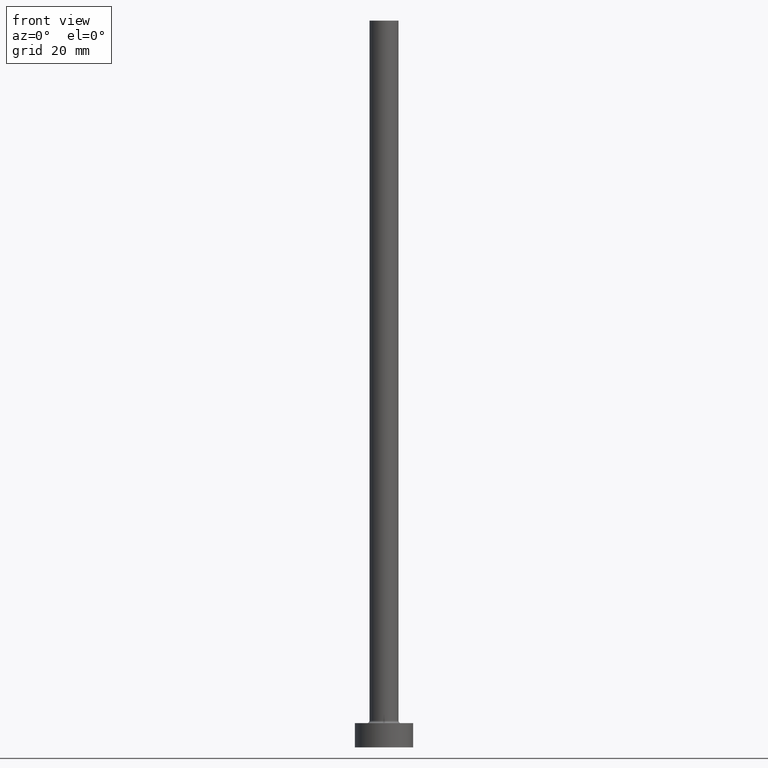
[diagram: clean part render]
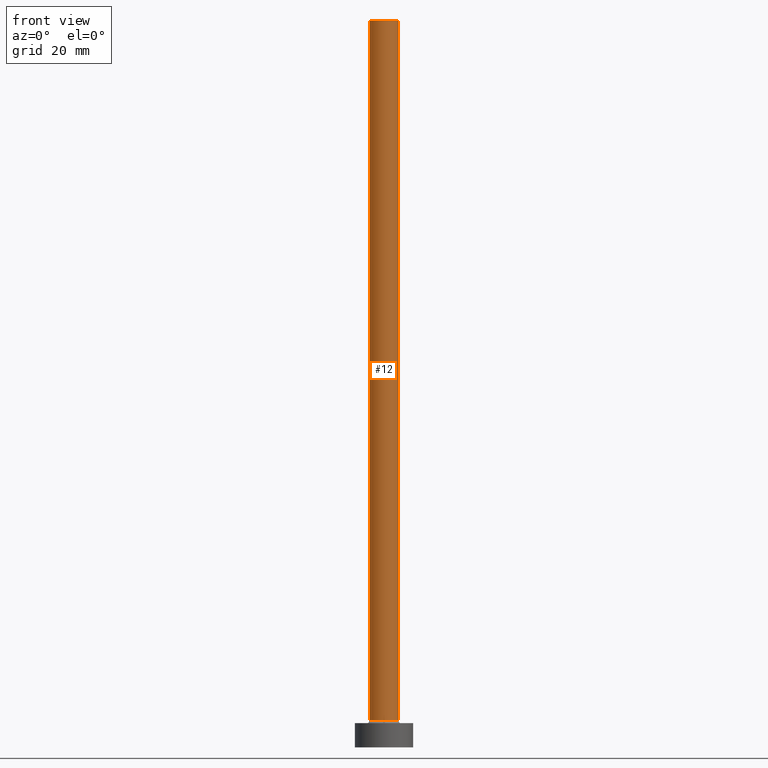
[diagram: same view with one face highlighted and labeled with its STEP entity id]
A machine part, front view. The second image highlights one B-rep face of the part: STEP entity #12.
In plain terms, the highlighted cylindrical surface (edge-blend (fillet) strip) has radius 3 mm, axis along (-0, -0, -1).
Its self-contained STEP definition (entity closure, byte-faithful):
#12 = ADVANCED_FACE ( 'NONE', ( #341 ), #241, .T. ) ;
#65 = CARTESIAN_POINT ( 'NONE',  ( -3.000000000000000444, 0.000000000000000000, 150.0000000000000000 ) ) ;
#72 = CARTESIAN_POINT ( 'NONE',  ( 0.000000000000000000, 0.000000000000000000, 5.500000000000005329 ) ) ;
#77 = VECTOR ( 'NONE', #265, 1000.000000000000000 ) ;
#81 = AXIS2_PLACEMENT_3D ( 'NONE', #72, #243, #383 ) ;
#85 = VECTOR ( 'NONE', #203, 1000.000000000000000 ) ;
#101 = ORIENTED_EDGE ( 'NONE', *, *, #329, .F. ) ;
#122 = CARTESIAN_POINT ( 'NONE',  ( 3.000000000000000444, 3.673940397442060361E-16, 150.0000000000000000 ) ) ;
#123 = VERTEX_POINT ( 'NONE', #295 ) ;
#125 = VERTEX_POINT ( 'NONE', #283 ) ;
#135 = LINE ( 'NONE', #65, #85 ) ;
#163 = ORIENTED_EDGE ( 'NONE', *, *, #232, .F. ) ;
#165 = DIRECTION ( 'NONE',  ( -1.000000000000000000, 0.000000000000000000, 0.000000000000000000 ) ) ;
#175 = EDGE_CURVE ( 'NONE', #285, #125, #135, .T. ) ;
#185 = DIRECTION ( 'NONE',  ( 0.000000000000000000, 0.000000000000000000, 1.000000000000000000 ) ) ;
#197 = AXIS2_PLACEMENT_3D ( 'NONE', #358, #185, #459 ) ;
#202 = AXIS2_PLACEMENT_3D ( 'NONE', #268, #307, #165 ) ;
#203 = DIRECTION ( 'NONE',  ( -0.000000000000000000, -0.000000000000000000, -1.000000000000000000 ) ) ;
#209 = VERTEX_POINT ( 'NONE', #248 ) ;
#232 = EDGE_CURVE ( 'NONE', #285, #209, #242, .T. ) ;
#234 = ORIENTED_EDGE ( 'NONE', *, *, #175, .T. ) ;
#241 = CYLINDRICAL_SURFACE ( 'NONE', #202, 3.000000000000000444 ) ;
#242 = CIRCLE ( 'NONE', #197, 3.000000000000000444 ) ;
#243 = DIRECTION ( 'NONE',  ( 0.000000000000000000, 0.000000000000000000, 1.000000000000000000 ) ) ;
#248 = CARTESIAN_POINT ( 'NONE',  ( 3.000000000000000444, 3.673940397442060361E-16, 150.0000000000000000 ) ) ;
#265 = DIRECTION ( 'NONE',  ( -0.000000000000000000, -0.000000000000000000, -1.000000000000000000 ) ) ;
#268 = CARTESIAN_POINT ( 'NONE',  ( 0.000000000000000000, 0.000000000000000000, 150.0000000000000000 ) ) ;
#283 = CARTESIAN_POINT ( 'NONE',  ( -3.000000000000000444, 0.000000000000000000, 5.500000000000005329 ) ) ;
#285 = VERTEX_POINT ( 'NONE', #428 ) ;
#295 = CARTESIAN_POINT ( 'NONE',  ( 3.000000000000000444, 3.673940397442060361E-16, 5.500000000000005329 ) ) ;
#296 = EDGE_LOOP ( 'NONE', ( #101, #163, #234, #385 ) ) ;
#307 = DIRECTION ( 'NONE',  ( -0.000000000000000000, -0.000000000000000000, -1.000000000000000000 ) ) ;
#329 = EDGE_CURVE ( 'NONE', #209, #123, #436, .T. ) ;
#341 = FACE_OUTER_BOUND ( 'NONE', #296, .T. ) ;
#358 = CARTESIAN_POINT ( 'NONE',  ( 0.000000000000000000, 0.000000000000000000, 150.0000000000000000 ) ) ;
#383 = DIRECTION ( 'NONE',  ( 1.000000000000000000, 0.000000000000000000, 0.000000000000000000 ) ) ;
#385 = ORIENTED_EDGE ( 'NONE', *, *, #389, .T. ) ;
#389 = EDGE_CURVE ( 'NONE', #125, #123, #439, .T. ) ;
#428 = CARTESIAN_POINT ( 'NONE',  ( -3.000000000000000444, 0.000000000000000000, 150.0000000000000000 ) ) ;
#436 = LINE ( 'NONE', #122, #77 ) ;
#439 = CIRCLE ( 'NONE', #81, 3.000000000000000444 ) ;
#459 = DIRECTION ( 'NONE',  ( 1.000000000000000000, 0.000000000000000000, 0.000000000000000000 ) ) ;